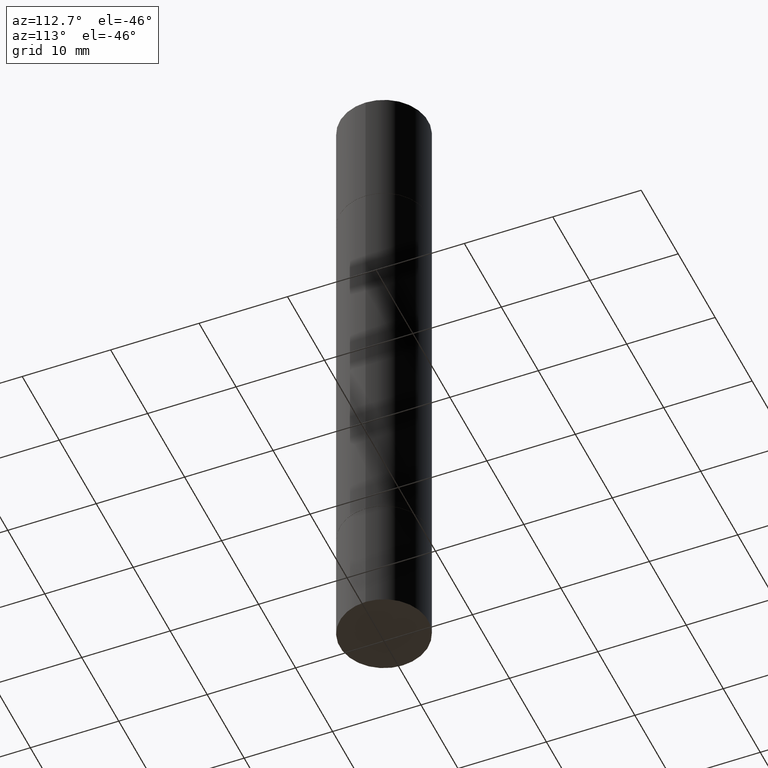
[diagram: clean part render]
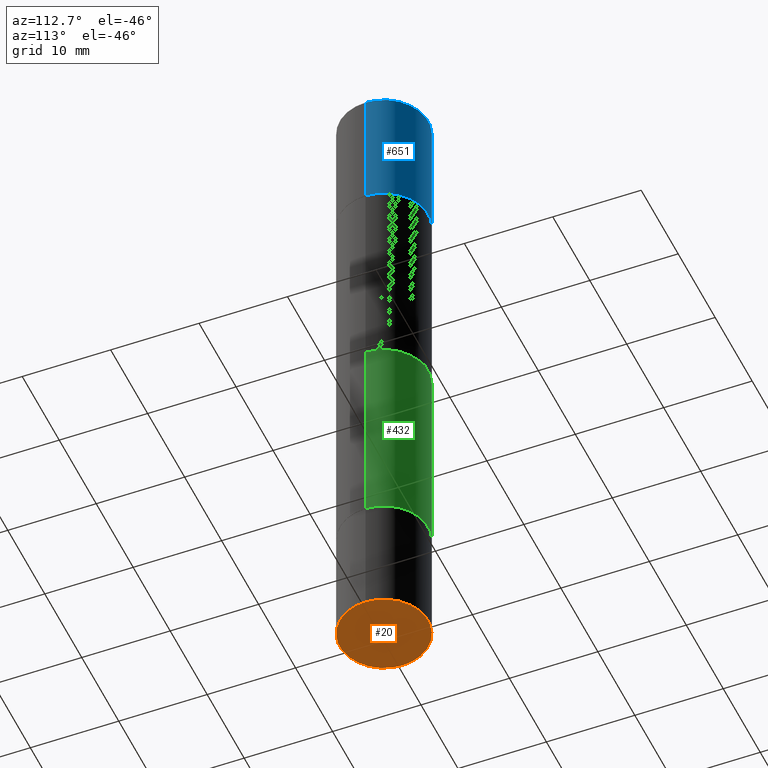
[diagram: same view with three faces highlighted in distinct colors, each labeled with its STEP entity id]
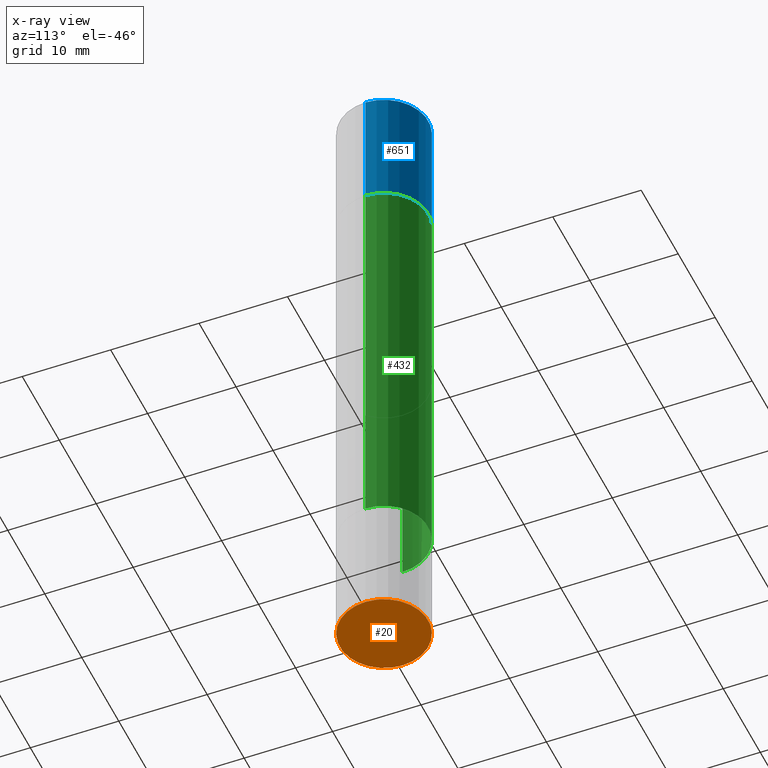
[diagram: x-ray of the same camera — body ghosted, the three highlighted faces saturated]
A machine part, auxiliary view with three faces highlighted in distinct colors.
The next image is the same camera in x-ray (body ghosted, the three faces saturated) — at least one of them is partly hidden behind the body in this view.
Their STEP definitions:

[orange] entity #20 — the highlighted planar face has unit normal (0, -0, -1).
#1 = AXIS2_PLACEMENT_3D ( 'NONE', #388, #78, #191 ) ;
#13 = CARTESIAN_POINT ( 'NONE',  ( -0.1968500000000000250, -7.948690465007109319E-15, -2.952799999999999869 ) ) ;
#17 = EDGE_CURVE ( 'NONE', #582, #111, #510, .T. ) ;
#20 = ADVANCED_FACE ( 'NONE', ( #439 ), #494, .T. ) ;
#33 = ORIENTED_EDGE ( 'NONE', *, *, #639, .F. ) ;
#41 = ORIENTED_EDGE ( 'NONE', *, *, #17, .F. ) ;
#78 = DIRECTION ( 'NONE',  ( -2.445468806185136597E-29, 3.491481338843145583E-15, 1.000000000000000000 ) ) ;
#107 = AXIS2_PLACEMENT_3D ( 'NONE', #660, #442, #611 ) ;
#111 = VERTEX_POINT ( 'NONE', #261 ) ;
#191 = DIRECTION ( 'NONE',  ( 1.000000000000000000, -6.982962677686267499E-15, 0.000000000000000000 ) ) ;
#223 = CARTESIAN_POINT ( 'NONE',  ( 7.220980290903470182E-29, -1.030964609733603853E-14, -2.952799999999999869 ) ) ;
#234 = DIRECTION ( 'NONE',  ( -2.445468806185136597E-29, 3.491481338843145583E-15, 1.000000000000000000 ) ) ;
#261 = CARTESIAN_POINT ( 'NONE',  ( 0.1968500000000000250, -1.168424230043858014E-14, -2.952799999999999869 ) ) ;
#284 = DIRECTION ( 'NONE',  ( 1.000000000000000000, -6.982962677686267499E-15, 0.000000000000000000 ) ) ;
#321 = EDGE_LOOP ( 'NONE', ( #33, #41 ) ) ;
#388 = CARTESIAN_POINT ( 'NONE',  ( 7.220980290903470182E-29, -1.030964609733603853E-14, -2.952799999999999869 ) ) ;
#433 = CIRCLE ( 'NONE', #1, 0.1968500000000000250 ) ;
#439 = FACE_OUTER_BOUND ( 'NONE', #321, .T. ) ;
#442 = DIRECTION ( 'NONE',  ( 2.438088387897960049E-29, -3.491481338843145188E-15, -1.000000000000000000 ) ) ;
#494 = PLANE ( 'NONE',  #107 ) ;
#510 = CIRCLE ( 'NONE', #661, 0.1968500000000000250 ) ;
#582 = VERTEX_POINT ( 'NONE', #13 ) ;
#611 = DIRECTION ( 'NONE',  ( -1.000000000000000000, 6.982962677686265922E-15, -4.876176775795935793E-29 ) ) ;
#639 = EDGE_CURVE ( 'NONE', #111, #582, #433, .T. ) ;
#660 = CARTESIAN_POINT ( 'NONE',  ( 1.374596203102613789E-15, 0.1968499999999896999, -2.952800000000000313 ) ) ;
#661 = AXIS2_PLACEMENT_3D ( 'NONE', #223, #234, #284 ) ;

[blue] entity #651 — the highlighted cylindrical surface (partial cylindrical patch) has radius 5 mm, axis along (-0, -0, -1).
#61 = CARTESIAN_POINT ( 'NONE',  ( -0.1968500000000000250, 3.899287883846529545E-16, 5.463695987328561936E-16 ) ) ;
#76 = CIRCLE ( 'NONE', #354, 0.1968500000000000250 ) ;
#90 = LINE ( 'NONE', #138, #378 ) ;
#124 = DIRECTION ( 'NONE',  ( -2.445468806185136597E-29, -3.492890411551752677E-15, -1.000000000000000000 ) ) ;
#138 = CARTESIAN_POINT ( 'NONE',  ( -0.1968500000000000250, -8.961237421421697861E-15, -2.952799999999998981 ) ) ;
#165 = CARTESIAN_POINT ( 'NONE',  ( 0.1968500000000000250, -1.168632265538556569E-14, -2.952799999999998981 ) ) ;
#173 = DIRECTION ( 'NONE',  ( 2.445468806185136597E-29, 3.492890411551752677E-15, 1.000000000000000000 ) ) ;
#188 = EDGE_CURVE ( 'NONE', #565, #629, #76, .T. ) ;
#189 = CIRCLE ( 'NONE', #218, 0.1968500000000000250 ) ;
#218 = AXIS2_PLACEMENT_3D ( 'NONE', #645, #173, #435 ) ;
#221 = CARTESIAN_POINT ( 'NONE',  ( 0.1968500000000000250, -3.297797043002877729E-15, -0.5511999999999995792 ) ) ;
#226 = VERTEX_POINT ( 'NONE', #61 ) ;
#238 = EDGE_CURVE ( 'NONE', #310, #565, #492, .T. ) ;
#249 = EDGE_CURVE ( 'NONE', #310, #226, #189, .T. ) ;
#294 = ORIENTED_EDGE ( 'NONE', *, *, #249, .F. ) ;
#297 = VECTOR ( 'NONE', #597, 39.37007874015748143 ) ;
#310 = VERTEX_POINT ( 'NONE', #595 ) ;
#349 = ORIENTED_EDGE ( 'NONE', *, *, #238, .T. ) ;
#354 = AXIS2_PLACEMENT_3D ( 'NONE', #362, #505, #424 ) ;
#362 = CARTESIAN_POINT ( 'NONE',  ( 5.873037884934223228E-29, -1.923200839900336120E-15, -0.5511999999999995792 ) ) ;
#378 = VECTOR ( 'NONE', #396, 39.37007874015748143 ) ;
#396 = DIRECTION ( 'NONE',  ( -2.445468806185136877E-29, -3.492890411551753071E-15, -1.000000000000000000 ) ) ;
#424 = DIRECTION ( 'NONE',  ( 1.000000000000000000, -6.982962677686267499E-15, 0.000000000000000000 ) ) ;
#435 = DIRECTION ( 'NONE',  ( 1.000000000000000000, -6.982962677686265922E-15, 0.000000000000000000 ) ) ;
#465 = EDGE_CURVE ( 'NONE', #226, #629, #90, .T. ) ;
#492 = LINE ( 'NONE', #165, #297 ) ;
#502 = CARTESIAN_POINT ( 'NONE',  ( -0.1968500000000000250, 3.899287883846532010E-16, -0.5511999999999995792 ) ) ;
#504 = DIRECTION ( 'NONE',  ( 1.000000000000000000, -6.982962677686267499E-15, 0.000000000000000000 ) ) ;
#505 = DIRECTION ( 'NONE',  ( 2.445468806185136597E-29, 3.492890411551752677E-15, 1.000000000000000000 ) ) ;
#551 = FACE_OUTER_BOUND ( 'NONE', #569, .T. ) ;
#563 = CYLINDRICAL_SURFACE ( 'NONE', #568, 0.1968500000000000250 ) ;
#565 = VERTEX_POINT ( 'NONE', #221 ) ;
#568 = AXIS2_PLACEMENT_3D ( 'NONE', #602, #124, #504 ) ;
#569 = EDGE_LOOP ( 'NONE', ( #656, #294, #349, #574 ) ) ;
#574 = ORIENTED_EDGE ( 'NONE', *, *, #188, .T. ) ;
#595 = CARTESIAN_POINT ( 'NONE',  ( 0.1968500000000000250, -1.372515848155552113E-15, 5.463695987328526437E-16 ) ) ;
#597 = DIRECTION ( 'NONE',  ( -2.445468806185136877E-29, -3.492890411551753071E-15, -1.000000000000000000 ) ) ;
#602 = CARTESIAN_POINT ( 'NONE',  ( 0.000000000000000000, -1.031172645228302408E-14, -2.952799999999998981 ) ) ;
#629 = VERTEX_POINT ( 'NONE', #502 ) ;
#645 = CARTESIAN_POINT ( 'NONE',  ( 7.220980290903470182E-29, 2.080354946989631982E-18, 5.463695987328526437E-16 ) ) ;
#651 = ADVANCED_FACE ( 'NONE', ( #551 ), #563, .T. ) ;
#656 = ORIENTED_EDGE ( 'NONE', *, *, #465, .F. ) ;

[green] entity #432 — the highlighted cylindrical surface (partial cylindrical patch) has radius 5 mm, axis along (-0, -0, -1).
#4 = EDGE_CURVE ( 'NONE', #501, #244, #326, .T. ) ;
#11 = AXIS2_PLACEMENT_3D ( 'NONE', #495, #131, #340 ) ;
#23 = AXIS2_PLACEMENT_3D ( 'NONE', #508, #449, #285 ) ;
#48 = ORIENTED_EDGE ( 'NONE', *, *, #497, .T. ) ;
#52 = LINE ( 'NONE', #100, #377 ) ;
#91 = EDGE_CURVE ( 'NONE', #258, #335, #52, .T. ) ;
#100 = CARTESIAN_POINT ( 'NONE',  ( 0.1968499999999998307, -1.168632265538556411E-14, -2.952799999999998981 ) ) ;
#122 = DIRECTION ( 'NONE',  ( -2.445468806185136877E-29, -3.492890411551753071E-15, -1.000000000000000000 ) ) ;
#127 = DIRECTION ( 'NONE',  ( 1.000000000000000000, -6.982962677686262766E-15, 0.000000000000000000 ) ) ;
#131 = DIRECTION ( 'NONE',  ( 2.445468806185136597E-29, 3.492890411551752677E-15, 1.000000000000000000 ) ) ;
#132 = CARTESIAN_POINT ( 'NONE',  ( 5.870592416128037625E-29, -8.381650102026854256E-15, -2.400599999999999401 ) ) ;
#193 = FACE_OUTER_BOUND ( 'NONE', #361, .T. ) ;
#196 = ORIENTED_EDGE ( 'NONE', *, *, #4, .F. ) ;
#225 = CARTESIAN_POINT ( 'NONE',  ( -0.1968500000000000250, -3.804334017806689102E-15, -2.400599999999999401 ) ) ;
#244 = VERTEX_POINT ( 'NONE', #225 ) ;
#258 = VERTEX_POINT ( 'NONE', #283 ) ;
#283 = CARTESIAN_POINT ( 'NONE',  ( 0.1968500000000000250, -3.301289933414429871E-15, -0.5521999999999996911 ) ) ;
#285 = DIRECTION ( 'NONE',  ( 1.000000000000000000, -6.982962677686264344E-15, 0.000000000000000000 ) ) ;
#289 = CYLINDRICAL_SURFACE ( 'NONE', #23, 0.1968499999999998307 ) ;
#324 = ORIENTED_EDGE ( 'NONE', *, *, #622, .F. ) ;
#326 = LINE ( 'NONE', #346, #641 ) ;
#335 = VERTEX_POINT ( 'NONE', #540 ) ;
#337 = CARTESIAN_POINT ( 'NONE',  ( -0.1968500000000000250, -5.762046994505618475E-16, -0.5521999999999996911 ) ) ;
#340 = DIRECTION ( 'NONE',  ( 1.000000000000000000, -6.982962677686267499E-15, 0.000000000000000000 ) ) ;
#346 = CARTESIAN_POINT ( 'NONE',  ( -0.1968499999999998307, -8.961237421421701017E-15, -2.952799999999998981 ) ) ;
#361 = EDGE_LOOP ( 'NONE', ( #196, #324, #506, #48 ) ) ;
#377 = VECTOR ( 'NONE', #457, 39.37007874015748143 ) ;
#432 = ADVANCED_FACE ( 'NONE', ( #193 ), #289, .T. ) ;
#445 = CIRCLE ( 'NONE', #633, 0.1968500000000000250 ) ;
#449 = DIRECTION ( 'NONE',  ( -2.445468806185136597E-29, -3.492890411551752677E-15, -1.000000000000000000 ) ) ;
#457 = DIRECTION ( 'NONE',  ( -2.445468806185136877E-29, -3.492890411551753071E-15, -1.000000000000000000 ) ) ;
#495 = CARTESIAN_POINT ( 'NONE',  ( 5.870592416128037625E-29, -1.926693730311889446E-15, -0.5521999999999996911 ) ) ;
#497 = EDGE_CURVE ( 'NONE', #335, #244, #445, .T. ) ;
#501 = VERTEX_POINT ( 'NONE', #337 ) ;
#506 = ORIENTED_EDGE ( 'NONE', *, *, #91, .T. ) ;
#508 = CARTESIAN_POINT ( 'NONE',  ( 0.000000000000000000, -1.031172645228302408E-14, -2.952799999999998981 ) ) ;
#511 = CIRCLE ( 'NONE', #11, 0.1968500000000000250 ) ;
#540 = CARTESIAN_POINT ( 'NONE',  ( 0.1968500000000000250, -9.756246305129394287E-15, -2.400599999999999401 ) ) ;
#607 = DIRECTION ( 'NONE',  ( -2.445468806185136597E-29, 3.491481338843145583E-15, 1.000000000000000000 ) ) ;
#622 = EDGE_CURVE ( 'NONE', #258, #501, #511, .T. ) ;
#633 = AXIS2_PLACEMENT_3D ( 'NONE', #132, #607, #127 ) ;
#641 = VECTOR ( 'NONE', #122, 39.37007874015748143 ) ;